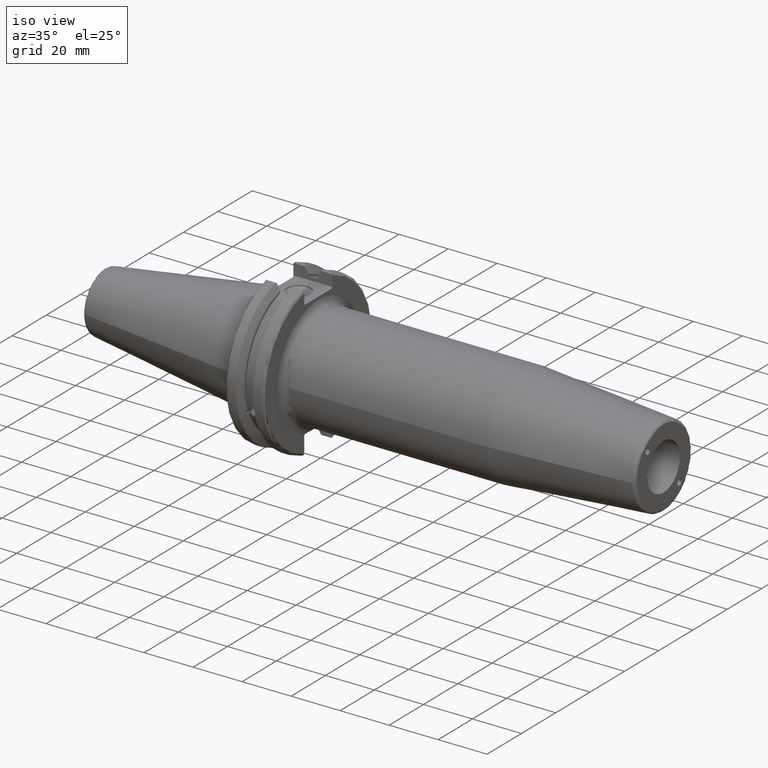
[diagram: clean part render]
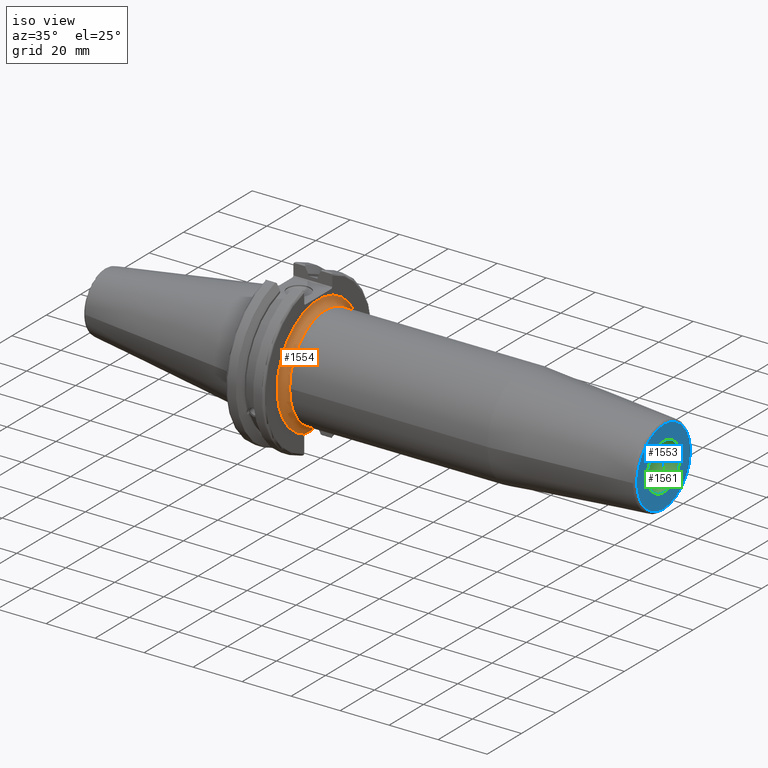
[diagram: same view with three faces highlighted in distinct colors, each labeled with its STEP entity id]
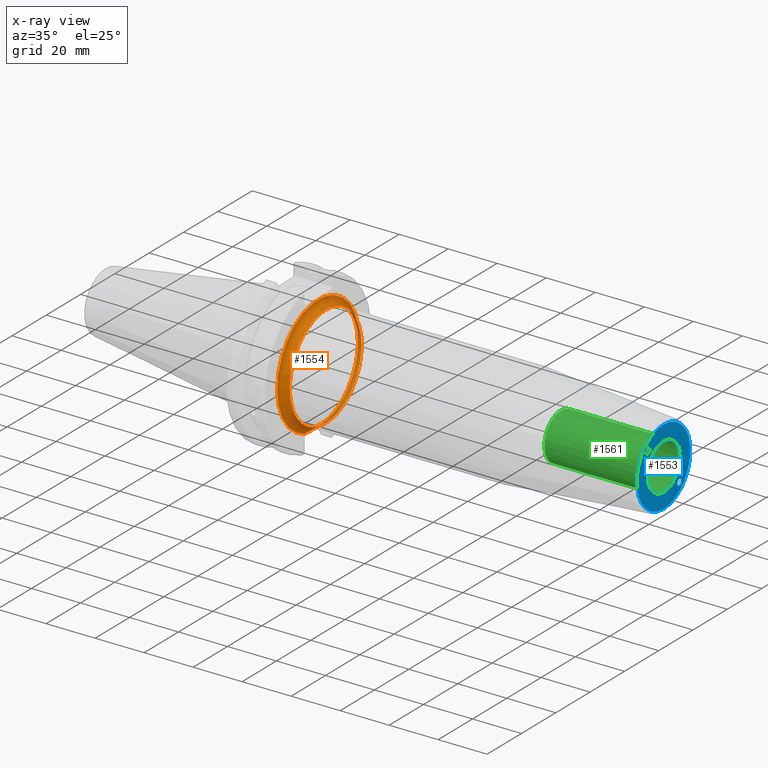
[diagram: x-ray of the same camera — body ghosted, the three highlighted faces saturated]
A machine part, iso view with three faces highlighted in distinct colors.
The next image is the same camera in x-ray (body ghosted, the three faces saturated) — at least one of them is partly hidden behind the body in this view.
Their STEP definitions:

[orange] entity #1554 — the highlighted toroidal blend (fillet) surface has major radius 24 mm and minor (blend) radius 3 mm.
#31=B_SPLINE_CURVE_WITH_KNOTS('',3,(#2359,#2360,#2361,#2362,#2363,#2364,
#2365,#2366),.UNSPECIFIED.,.F.,.F.,(4,2,2,4),(3.0216236412766,3.28363628936793,
3.54564893745927,3.74225815963158),.UNSPECIFIED.);
#32=B_SPLINE_CURVE_WITH_KNOTS('',3,(#2368,#2369,#2370,#2371),
 .UNSPECIFIED.,.F.,.F.,(4,4),(1.40009398294628,1.41404503547573),
 .UNSPECIFIED.);
#33=B_SPLINE_CURVE_WITH_KNOTS('',3,(#2375,#2376,#2377,#2378),
 .UNSPECIFIED.,.F.,.F.,(4,4),(0.466891581460794,0.480842633994298),
 .UNSPECIFIED.);
#34=B_SPLINE_CURVE_WITH_KNOTS('',3,(#2379,#2380,#2381,#2382,#2383,#2384,
#2385,#2386),.UNSPECIFIED.,.F.,.F.,(4,2,2,4),(2.30098912292435,2.49759834509393,
2.75961099318527,3.0216236412766),.UNSPECIFIED.);
#120=TOROIDAL_SURFACE('',#1678,24.,3.);
#185=FACE_OUTER_BOUND('',#279,.T.);
#279=EDGE_LOOP('',(#1076,#1077,#1078,#1079,#1080,#1081,#1082,#1083,#1084));
#579=CIRCLE('',#1679,21.);
#580=CIRCLE('',#1680,3.);
#581=CIRCLE('',#1681,24.);
#582=CIRCLE('',#1682,21.);
#657=VERTEX_POINT('',#2353);
#658=VERTEX_POINT('',#2354);
#659=VERTEX_POINT('',#2356);
#660=VERTEX_POINT('',#2358);
#661=VERTEX_POINT('',#2367);
#662=VERTEX_POINT('',#2372);
#663=VERTEX_POINT('',#2374);
#821=EDGE_CURVE('',#657,#658,#579,.T.);
#822=EDGE_CURVE('',#658,#659,#580,.T.);
#823=EDGE_CURVE('',#660,#659,#31,.F.);
#824=EDGE_CURVE('',#661,#660,#32,.F.);
#825=EDGE_CURVE('',#661,#662,#581,.T.);
#826=EDGE_CURVE('',#663,#662,#33,.F.);
#827=EDGE_CURVE('',#659,#663,#34,.F.);
#828=EDGE_CURVE('',#658,#657,#582,.T.);
#1076=ORIENTED_EDGE('',*,*,#821,.T.);
#1077=ORIENTED_EDGE('',*,*,#822,.T.);
#1078=ORIENTED_EDGE('',*,*,#823,.F.);
#1079=ORIENTED_EDGE('',*,*,#824,.F.);
#1080=ORIENTED_EDGE('',*,*,#825,.T.);
#1081=ORIENTED_EDGE('',*,*,#826,.F.);
#1082=ORIENTED_EDGE('',*,*,#827,.F.);
#1083=ORIENTED_EDGE('',*,*,#822,.F.);
#1084=ORIENTED_EDGE('',*,*,#828,.T.);
#1554=ADVANCED_FACE('',(#185),#120,.F.);
#1678=AXIS2_PLACEMENT_3D('',#2352,#1888,#1889);
#1679=AXIS2_PLACEMENT_3D('',#2355,#1890,#1891);
#1680=AXIS2_PLACEMENT_3D('',#2357,#1892,#1893);
#1681=AXIS2_PLACEMENT_3D('',#2373,#1894,#1895);
#1682=AXIS2_PLACEMENT_3D('',#2387,#1896,#1897);
#1888=DIRECTION('center_axis',(-1.,0.,0.));
#1889=DIRECTION('ref_axis',(0.,0.,1.));
#1890=DIRECTION('center_axis',(-1.,0.,0.));
#1891=DIRECTION('ref_axis',(0.,-1.,-1.22464679914735E-16));
#1892=DIRECTION('center_axis',(0.,-1.,1.22464679914735E-16));
#1893=DIRECTION('ref_axis',(0.,-1.22464679914735E-16,-1.));
#1894=DIRECTION('center_axis',(1.,0.,0.));
#1895=DIRECTION('ref_axis',(0.,-1.,-1.22464679914735E-16));
#1896=DIRECTION('center_axis',(-1.,0.,0.));
#1897=DIRECTION('ref_axis',(0.,-1.,-1.22464679914735E-16));
#2352=CARTESIAN_POINT('Origin',(22.05,0.,0.));
#2353=CARTESIAN_POINT('',(22.05,-21.,-2.57175827820944E-15));
#2354=CARTESIAN_POINT('',(22.05,-2.57175827820944E-15,-21.));
#2355=CARTESIAN_POINT('Origin',(22.05,0.,0.));
#2356=CARTESIAN_POINT('',(19.3967001677157,-1.52262876111465E-15,-22.6));
#2357=CARTESIAN_POINT('Origin',(22.05,-2.93915231795365E-15,-24.));
#2358=CARTESIAN_POINT('',(19.0527107387712,7.68999999999903,-22.5999999999997));
#2359=CARTESIAN_POINT('Ctrl Pts',(19.3967001677157,-2.77555756156289E-16,
-22.6));
#2360=CARTESIAN_POINT('Ctrl Pts',(19.3967001677157,0.873375493637782,-22.6));
#2361=CARTESIAN_POINT('Ctrl Pts',(19.36568730967,1.83307700034501,-22.6));
#2362=CARTESIAN_POINT('Ctrl Pts',(19.260184656287,3.75074838316051,-22.6));
#2363=CARTESIAN_POINT('Ctrl Pts',(19.1897248959444,4.70893785217618,-22.6));
#2364=CARTESIAN_POINT('Ctrl Pts',(19.0991248022468,6.23499037040781,-22.6));
#2365=CARTESIAN_POINT('Ctrl Pts',(19.0621726707475,6.99950800192411,-22.6));
#2366=CARTESIAN_POINT('Ctrl Pts',(19.0527107387712,7.68999999999903,-22.6));
#2367=CARTESIAN_POINT('',(19.05,7.79042472350311,-22.7004247235031));
#2368=CARTESIAN_POINT('Ctrl Pts',(19.0527107387708,7.69000000000736,-22.6000000000074));
#2369=CARTESIAN_POINT('Ctrl Pts',(19.0508750457563,7.72400994662632,-22.6340099466263));
#2370=CARTESIAN_POINT('Ctrl Pts',(19.05,7.75754177734222,-22.6675417773422));
#2371=CARTESIAN_POINT('Ctrl Pts',(19.05,7.79042472350311,-22.7004247235031));
#2372=CARTESIAN_POINT('',(19.05,-7.79042472350311,-22.7004247235031));
#2373=CARTESIAN_POINT('Origin',(19.05,0.,0.));
#2374=CARTESIAN_POINT('',(19.0527107387728,-7.68999999997033,-22.5999999999852));
#2375=CARTESIAN_POINT('Ctrl Pts',(19.05,-7.79042472350311,-22.7004247235031));
#2376=CARTESIAN_POINT('Ctrl Pts',(19.05,-7.75754177733267,-22.6675417773327));
#2377=CARTESIAN_POINT('Ctrl Pts',(19.0508750457568,-7.72400994660685,-22.6340099466069));
#2378=CARTESIAN_POINT('Ctrl Pts',(19.0527107387724,-7.68999999997774,-22.5999999999777));
#2379=CARTESIAN_POINT('Ctrl Pts',(19.0527107387716,-7.68999999997031,-22.6));
#2380=CARTESIAN_POINT('Ctrl Pts',(19.0621726707484,-6.99950800190291,-22.6));
#2381=CARTESIAN_POINT('Ctrl Pts',(19.0991248022473,-6.23499037039874,-22.6));
#2382=CARTESIAN_POINT('Ctrl Pts',(19.1897248959444,-4.70893785217618,-22.6));
#2383=CARTESIAN_POINT('Ctrl Pts',(19.260184656287,-3.75074838316051,-22.6));
#2384=CARTESIAN_POINT('Ctrl Pts',(19.36568730967,-1.83307700034501,-22.6));
#2385=CARTESIAN_POINT('Ctrl Pts',(19.3967001677157,-0.873375493637783,-22.6));
#2386=CARTESIAN_POINT('Ctrl Pts',(19.3967001677157,-2.77555756156289E-16,
-22.6));
#2387=CARTESIAN_POINT('Origin',(22.05,0.,0.));

[blue] entity #1553 — the highlighted planar face has unit normal (1, 0, 0).
#65=FACE_BOUND('',#276,.T.);
#66=FACE_BOUND('',#277,.T.);
#67=FACE_BOUND('',#278,.T.);
#82=PLANE('',#1676);
#127=ELLIPSE('',#1664,1.25076193037353,1.25);
#128=ELLIPSE('',#1668,1.25076193037353,1.25);
#184=FACE_OUTER_BOUND('',#275,.T.);
#275=EDGE_LOOP('',(#1072));
#276=EDGE_LOOP('',(#1073));
#277=EDGE_LOOP('',(#1074));
#278=EDGE_LOOP('',(#1075));
#573=CIRCLE('',#1670,15.5756095083418);
#578=CIRCLE('',#1677,9.52500000000001);
#648=VERTEX_POINT('',#2325);
#651=VERTEX_POINT('',#2334);
#652=VERTEX_POINT('',#2338);
#656=VERTEX_POINT('',#2350);
#808=EDGE_CURVE('',#648,#648,#127,.T.);
#812=EDGE_CURVE('',#651,#651,#128,.T.);
#814=EDGE_CURVE('',#652,#652,#573,.T.);
#820=EDGE_CURVE('',#656,#656,#578,.T.);
#1072=ORIENTED_EDGE('',*,*,#814,.F.);
#1073=ORIENTED_EDGE('',*,*,#808,.T.);
#1074=ORIENTED_EDGE('',*,*,#812,.T.);
#1075=ORIENTED_EDGE('',*,*,#820,.F.);
#1553=ADVANCED_FACE('',(#184,#65,#66,#67),#82,.T.);
#1664=AXIS2_PLACEMENT_3D('',#2326,#1856,#1857);
#1668=AXIS2_PLACEMENT_3D('',#2335,#1866,#1867);
#1670=AXIS2_PLACEMENT_3D('',#2339,#1871,#1872);
#1676=AXIS2_PLACEMENT_3D('',#2349,#1884,#1885);
#1677=AXIS2_PLACEMENT_3D('',#2351,#1886,#1887);
#1856=DIRECTION('center_axis',(-1.,0.,0.));
#1857=DIRECTION('ref_axis',(0.,-0.707106781186413,0.707106781186682));
#1866=DIRECTION('center_axis',(-1.,0.,0.));
#1867=DIRECTION('ref_axis',(0.,0.707106781186413,-0.707106781186682));
#1871=DIRECTION('center_axis',(-1.,0.,0.));
#1872=DIRECTION('ref_axis',(0.,-1.,1.83697019872103E-16));
#1884=DIRECTION('center_axis',(1.,0.,0.));
#1885=DIRECTION('ref_axis',(0.,0.,-1.));
#1886=DIRECTION('center_axis',(1.,0.,0.));
#1887=DIRECTION('ref_axis',(0.,0.,-1.));
#2325=CARTESIAN_POINT('',(160.,-7.94200713220226,9.19162622508696));
#2326=CARTESIAN_POINT('Origin',(160.,-9.19238815542512,9.19238815542512));
#2334=CARTESIAN_POINT('',(160.,7.94200713220226,-9.19162622508696));
#2335=CARTESIAN_POINT('Origin',(160.,9.19238815542512,-9.19238815542512));
#2338=CARTESIAN_POINT('',(160.,-1.90746203291599E-15,15.5756095083418));
#2339=CARTESIAN_POINT('Origin',(160.,0.,0.));
#2349=CARTESIAN_POINT('Origin',(160.,9.52500000000001,0.));
#2350=CARTESIAN_POINT('',(160.,-9.525,-1.16647607618785E-15));
#2351=CARTESIAN_POINT('Origin',(160.,0.,0.));

[green] entity #1561 — the highlighted cylindrical surface (bore or boss wall) has radius 9.525 mm, axis along (1, 0, 0).
#153=CYLINDRICAL_SURFACE('',#1696,9.525);
#192=FACE_OUTER_BOUND('',#289,.T.);
#289=EDGE_LOOP('',(#1114,#1115,#1116,#1117));
#387=LINE('',#2491,#484);
#484=VECTOR('',#1931,9.525);
#578=CIRCLE('',#1677,9.52500000000001);
#590=CIRCLE('',#1697,9.525);
#656=VERTEX_POINT('',#2350);
#675=VERTEX_POINT('',#2490);
#820=EDGE_CURVE('',#656,#656,#578,.T.);
#845=EDGE_CURVE('',#656,#675,#387,.T.);
#846=EDGE_CURVE('',#675,#675,#590,.T.);
#1114=ORIENTED_EDGE('',*,*,#820,.T.);
#1115=ORIENTED_EDGE('',*,*,#845,.T.);
#1116=ORIENTED_EDGE('',*,*,#846,.F.);
#1117=ORIENTED_EDGE('',*,*,#845,.F.);
#1561=ADVANCED_FACE('',(#192),#153,.F.);
#1677=AXIS2_PLACEMENT_3D('',#2351,#1886,#1887);
#1696=AXIS2_PLACEMENT_3D('',#2489,#1929,#1930);
#1697=AXIS2_PLACEMENT_3D('',#2492,#1932,#1933);
#1886=DIRECTION('center_axis',(1.,0.,0.));
#1887=DIRECTION('ref_axis',(0.,0.,-1.));
#1929=DIRECTION('center_axis',(1.,0.,0.));
#1930=DIRECTION('ref_axis',(0.,1.,0.));
#1931=DIRECTION('',(-1.,0.,0.));
#1932=DIRECTION('center_axis',(1.,0.,0.));
#1933=DIRECTION('ref_axis',(0.,0.,-1.));
#2350=CARTESIAN_POINT('',(160.,-9.525,-1.16647607618785E-15));
#2351=CARTESIAN_POINT('Origin',(160.,0.,0.));
#2489=CARTESIAN_POINT('Origin',(139.,0.,0.));
#2490=CARTESIAN_POINT('',(118.,-9.525,-1.16647607618785E-15));
#2491=CARTESIAN_POINT('',(139.,-9.525,-1.16647607618785E-15));
#2492=CARTESIAN_POINT('Origin',(118.,0.,0.));